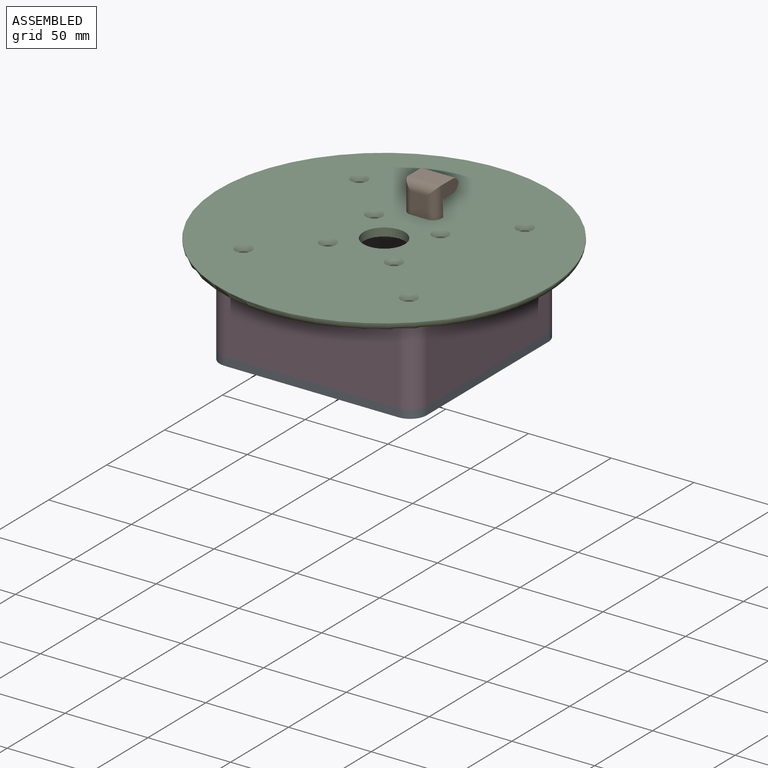
[diagram: assembled view]
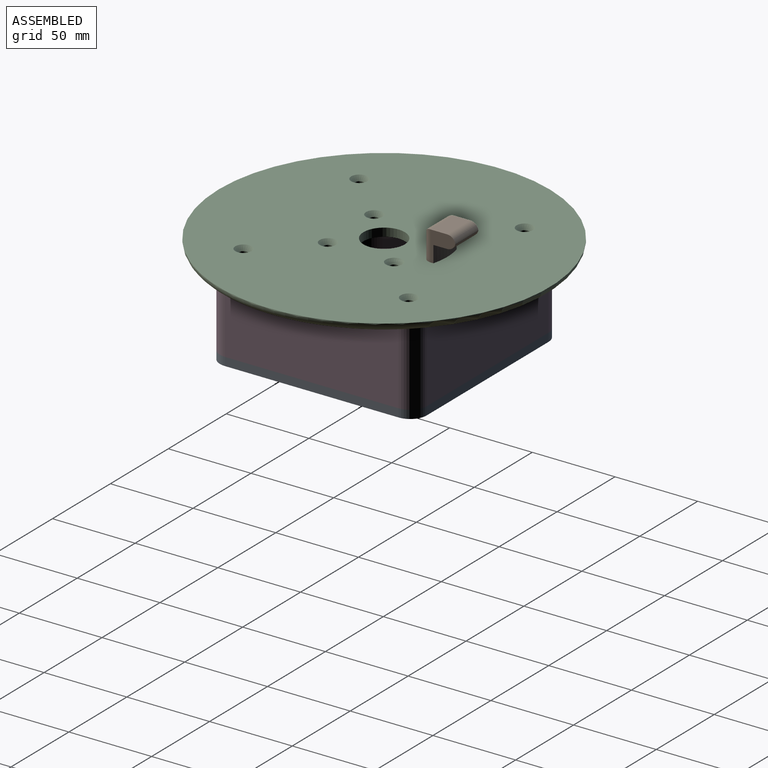
[diagram: assembled view, second angle]
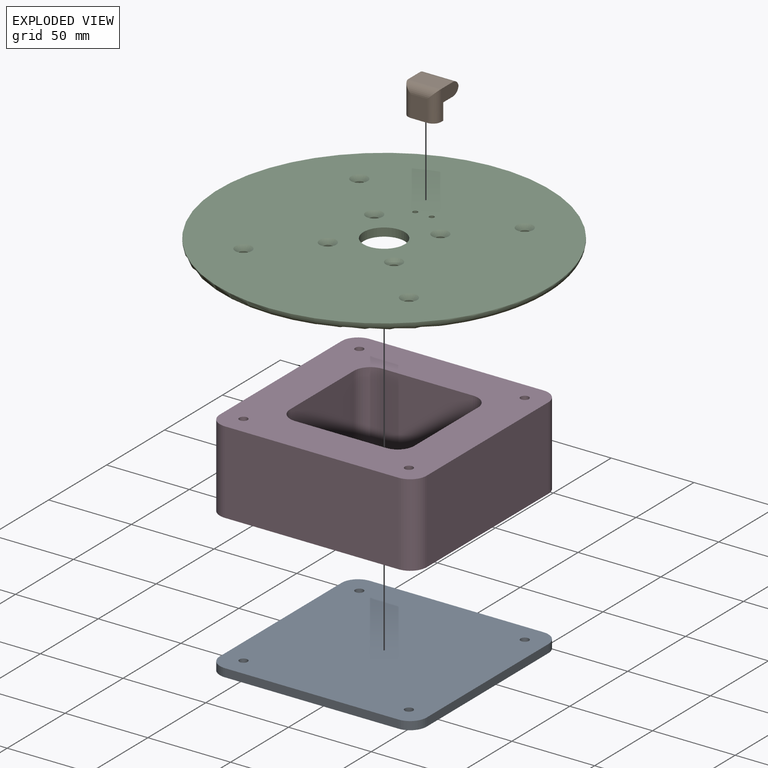
[diagram: exploded view]
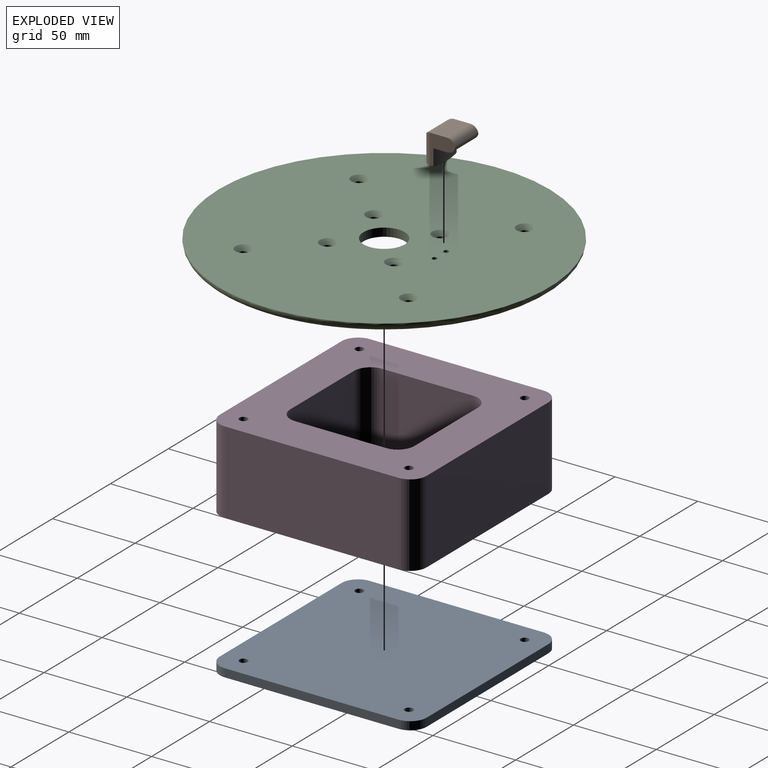
[diagram: exploded view, second angle]
ASSEMBLY  parts=4 mates=3
PART A: 14 faces, bbox 125x125x5 mm
  f0: plane 105x5mm, normal (0,1,0), area 525mm2, adj f1,f11,f12,f13
  f1: cylinder r=10mm len=10mm, axis (0,0,1), area 78.5mm2, adj f0,f2,f12,f13
  f2: plane 105x5mm, normal (1,0,0), area 525mm2, adj f1,f3,f12,f13
  f3: cylinder r=10mm len=10mm, axis (0,0,1), area 78.5mm2, adj f2,f4,f12,f13
  f4: plane 105x5mm, normal (0,-1,0), area 525mm2, adj f3,f5,f12,f13
  f5: cylinder r=10mm len=10mm, axis (0,0,1), area 78.5mm2, adj f4,f6,f12,f13
  f6: plane 105x5mm, normal (-1,0,0), area 525mm2, adj f5,f11,f12,f13
  f7: cylinder r=2.5mm len=5mm, axis (0,0,1), area 78.5mm2, adj f12,f13
  f8: cylinder r=2.5mm len=5mm, axis (0,0,1), area 78.5mm2, adj f12,f13
  f9: cylinder r=2.5mm len=5mm, axis (0,0,1), area 78.5mm2, adj f12,f13
  f10: cylinder r=2.5mm len=5mm, axis (0,0,1), area 78.5mm2, adj f12,f13
  f11: cylinder r=10mm len=10mm, axis (0,0,1), area 78.5mm2, adj f0,f6,f12,f13
  f12: plane 125x125mm, normal (0,0,-1), area 15460.6mm2, adj f0,f1,f2,f3,f4,f5,f6,f7
  f13: plane 125x125mm, normal (0,0,1), area 15460.6mm2, adj f0,f1,f2,f3,f4,f5,f6,f7
PART B: 16 faces, bbox 20x18x19.9 mm
  f0: plane 18x14.9mm, normal (-1,0,0), area 126mm2, adj f3,f4,f5,f6,f7,f8,f11
  f1: plane 13x10mm, normal (0,0,-1), area 130mm2, adj f5,f9,f10,f11
  f2: plane 18x14.9mm, normal (1,0,0), area 126mm2, adj f3,f4,f5,f6,f7,f8,f9
  f3: cylinder r=38.1mm len=20mm, axis (0,1,0), area 202.4mm2, adj f0,f2,f5,f6
  f4: plane 20x10mm, normal (0,-1,0), area 200mm2, adj f0,f2,f7,f10
  f5: plane 20x8mm, normal (0,1,0), area 126.3mm2, adj f0,f1,f2,f3,f9,f11,f12,f14
  f6: plane 20x8.34mm, normal (0,1,0), area 148.8mm2, adj f0,f2,f3,f8
  f7: cylinder r=5mm len=20mm, axis (1,0,0), area 136.9mm2, adj f0,f2,f4,f8
  f8: cylinder r=5mm len=20mm, axis (-1,0,0), area 136.9mm2, adj f0,f2,f6,f7
  f9: cylinder r=5mm len=18mm, axis (0,-1,0), area 127.1mm2, adj f1,f2,f5,f10
  f10: cylinder r=5mm len=20mm, axis (-1,0,0), area 128.5mm2, adj f1,f4,f9,f11
  f11: cylinder r=5mm len=18mm, axis (0,1,0), area 127.1mm2, adj f0,f1,f5,f10
  f12: cylinder r=1.5mm len=10mm, axis (0,1,0), area 94.2mm2, adj f5,f13
  f13: plane 3x3mm, normal (0,1,0), area 7.1mm2, adj f12
  f14: cylinder r=1.5mm len=10mm, axis (0,1,0), area 94.2mm2, adj f5,f15
  f15: plane 3x3mm, normal (0,1,0), area 7.1mm2, adj f14
PART C: 22 faces, bbox 216.5x8.6x216.5 mm
  f0: plane 200x200mm, normal (0,-1,0), area 30282.6mm2, adj f10,f11,f12,f13,f14,f15,f16,f17
  f1: plane 190x190mm, normal (0,1,0), area 27690.8mm2, adj f2,f3,f4,f5,f6,f7,f8,f9
  f2: cylinder r=2.5mm len=5mm, axis (0,-1,0), area 39.3mm2, adj f1,f18
  f3: cylinder r=2.5mm len=5mm, axis (0,-1,0), area 39.3mm2, adj f1,f15
  f4: cylinder r=2.5mm len=5mm, axis (0,-1,0), area 39.3mm2, adj f1,f16
  f5: cylinder r=2.5mm len=5mm, axis (0,-1,0), area 39.3mm2, adj f1,f17
  f6: cylinder r=2.5mm len=5mm, axis (0,-1,0), area 39.3mm2, adj f1,f13
  f7: cylinder r=2.5mm len=5mm, axis (0,-1,0), area 39.3mm2, adj f1,f14
  f8: cylinder r=2.5mm len=5mm, axis (0,-1,0), area 39.3mm2, adj f1,f11
  f9: cylinder r=2.5mm len=5mm, axis (0,-1,0), area 39.3mm2, adj f1,f12
  f10: cylinder r=12.5mm len=25mm, axis (0,-1,0), area 392.7mm2, adj f0,f1
  f11: cone r=2.5mm half-angle=45deg, axis (0,-1,0), area 83.3mm2, adj f0,f8
  f12: cone r=2.5mm half-angle=45deg, axis (0,-1,0), area 83.3mm2, adj f0,f9
  f13: cone r=2.5mm half-angle=45deg, axis (0,-1,0), area 83.3mm2, adj f0,f6
  f14: cone r=2.5mm half-angle=45deg, axis (0,-1,0), area 83.3mm2, adj f0,f7
  f15: cone r=2.5mm half-angle=45deg, axis (0,-1,0), area 83.3mm2, adj f0,f3
  f16: cone r=2.5mm half-angle=45deg, axis (0,-1,0), area 83.3mm2, adj f0,f4
  f17: cone r=2.5mm half-angle=45deg, axis (0,-1,0), area 83.3mm2, adj f0,f5
  f18: cone r=2.5mm half-angle=45deg, axis (0,-1,0), area 83.3mm2, adj f0,f2
  f19: cylinder r=1.5mm len=5mm, axis (0,1,0), area 47.1mm2, adj f0,f1
  f20: cylinder r=1.5mm len=5mm, axis (0,1,0), area 47.1mm2, adj f0,f1
  f21: torus R=95mm, axis (0,-1,0), area 4845.1mm2, adj f0,f1
PART D: 22 faces, bbox 125x125x50 mm
  f0: cylinder r=10mm len=50mm, axis (0,0,-1), area 785.4mm2, adj f1,f19,f20,f21
  f1: plane 55x50mm, normal (-1,0,0), area 2750mm2, adj f0,f2,f20,f21
  f2: cylinder r=10mm len=50mm, axis (0,0,-1), area 785.4mm2, adj f1,f3,f20,f21
  f3: plane 55x50mm, normal (0,1,0), area 2750mm2, adj f2,f4,f20,f21
  f4: cylinder r=10mm len=50mm, axis (0,0,-1), area 785.4mm2, adj f3,f5,f20,f21
  f5: plane 55x50mm, normal (1,0,0), area 2750mm2, adj f4,f6,f20,f21
  f6: cylinder r=10mm len=50mm, axis (0,0,-1), area 785.4mm2, adj f5,f19,f20,f21
  f7: plane 105x50mm, normal (1,0,0), area 5250mm2, adj f8,f14,f20,f21
  f8: cylinder r=10mm len=50mm, axis (0,0,-1), area 785.4mm2, adj f7,f9,f20,f21
  f9: plane 105x50mm, normal (0,1,0), area 5250mm2, adj f8,f10,f20,f21
  f10: cylinder r=10mm len=50mm, axis (0,0,-1), area 785.4mm2, adj f9,f11,f20,f21
  f11: plane 105x50mm, normal (-1,0,0), area 5250mm2, adj f10,f12,f20,f21
  f12: cylinder r=10mm len=50mm, axis (0,0,-1), area 785.4mm2, adj f11,f13,f20,f21
  f13: plane 105x50mm, normal (0,-1,0), area 5250mm2, adj f12,f14,f20,f21
  f14: cylinder r=10mm len=50mm, axis (0,0,-1), area 785.4mm2, adj f7,f13,f20,f21
  f15: cylinder r=2.5mm len=50mm, axis (0,0,-1), area 785.4mm2, adj f20,f21
  f16: cylinder r=2.5mm len=50mm, axis (0,0,-1), area 785.4mm2, adj f20,f21
  f17: cylinder r=2.5mm len=50mm, axis (0,0,-1), area 785.4mm2, adj f20,f21
  f18: cylinder r=2.5mm len=50mm, axis (0,0,-1), area 785.4mm2, adj f20,f21
  f19: plane 55x50mm, normal (0,-1,0), area 2750mm2, adj f0,f6,f20,f21
  f20: plane 125x125mm, normal (0,0,1), area 9921.5mm2, adj f0,f1,f2,f3,f4,f5,f6,f7
  f21: plane 125x125mm, normal (0,0,-1), area 9921.5mm2, adj f0,f1,f2,f3,f4,f5,f6,f7
PLACE A t=(-1.4,84.58,-152.23)mm
PLACE B rot(axis=(-1,0,0),90deg) t=(-1.4,84.58,-102.23)mm
PLACE C rot(axis=(-1,0,0),90deg) t=(-1.4,84.58,-102.23)mm
PLACE D t=(-1.4,84.58,-152.23)mm
MATE fastened C.f3 <-> D.f16  axis (0,0,-1) through (48.6,134.58,-102.23)mm
MATE fastened B.f14 <-> C.f20  axis (0,0,-1) through (3.6,118.58,-97.23)mm
MATE fastened A.f8 <-> D.f16  axis (0,0,1) through (48.6,134.58,-152.23)mm
